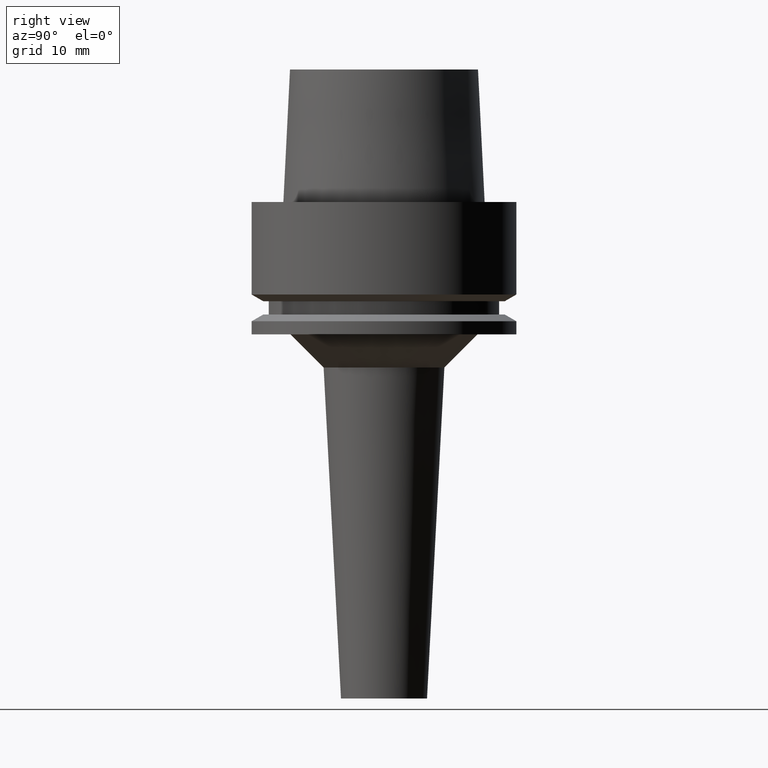
[diagram: clean part render]
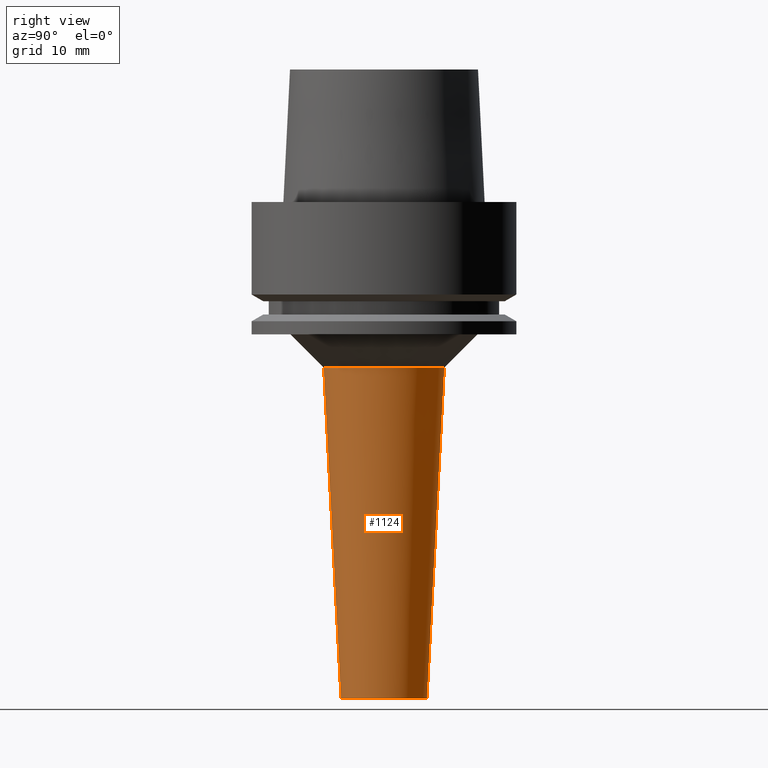
[diagram: same view with one face highlighted and labeled with its STEP entity id]
A machine part, right view. The second image highlights one B-rep face of the part: STEP entity #1124.
In plain terms, the highlighted conical surface has half-angle 3 deg.
Its self-contained STEP definition (entity closure, byte-faithful):
#316=DIRECTION('',(0.E0,-5.233595624293E-2,-9.986295347546E-1));
#317=VECTOR('',#316,5.006861729990E1);
#318=CARTESIAN_POINT('',(0.E0,9.120388964152E0,-2.5E1));
#319=LINE('',#318,#317);
#323=CARTESIAN_POINT('',(0.E0,0.E0,-2.5E1));
#324=DIRECTION('',(0.E0,0.E0,1.E0));
#325=DIRECTION('',(0.E0,-1.E0,0.E0));
#326=AXIS2_PLACEMENT_3D('',#323,#324,#325);
#331=DIRECTION('',(0.E0,5.233595624293E-2,-9.986295347546E-1));
#332=VECTOR('',#331,5.006861729990E1);
#333=CARTESIAN_POINT('',(0.E0,-9.120388964152E0,-2.5E1));
#334=LINE('',#333,#332);
#338=CARTESIAN_POINT('',(0.E0,0.E0,-7.5E1));
#339=DIRECTION('',(0.E0,0.E0,1.E0));
#340=DIRECTION('',(0.E0,-1.E0,0.E0));
#341=AXIS2_PLACEMENT_3D('',#338,#339,#340);
#768=CARTESIAN_POINT('',(0.E0,9.120388964152E0,-2.5E1));
#769=VERTEX_POINT('',#768);
#770=CARTESIAN_POINT('',(0.E0,-9.120388964152E0,-2.5E1));
#771=VERTEX_POINT('',#770);
#772=CARTESIAN_POINT('',(0.E0,6.5E0,-7.5E1));
#773=VERTEX_POINT('',#772);
#774=CARTESIAN_POINT('',(0.E0,-6.5E0,-7.5E1));
#775=VERTEX_POINT('',#774);
#1110=CARTESIAN_POINT('',(0.E0,0.E0,-5.E1));
#1111=DIRECTION('',(0.E0,0.E0,1.E0));
#1112=DIRECTION('',(0.E0,1.E0,0.E0));
#1113=AXIS2_PLACEMENT_3D('',#1110,#1111,#1112);
#1114=CONICAL_SURFACE('',#1113,7.810194482076E0,3.E0);
#1116=ORIENTED_EDGE('',*,*,#1115,.T.);
#1118=ORIENTED_EDGE('',*,*,#1117,.F.);
#1120=ORIENTED_EDGE('',*,*,#1119,.F.);
#1121=ORIENTED_EDGE('',*,*,#1103,.T.);
#1122=EDGE_LOOP('',(#1116,#1118,#1120,#1121));
#1123=FACE_OUTER_BOUND('',#1122,.F.);
#327=CIRCLE('',#326,9.120388964152E0);
#342=CIRCLE('',#341,6.5E0);
#1103=EDGE_CURVE('',#771,#769,#327,.T.);
#1115=EDGE_CURVE('',#769,#773,#319,.T.);
#1117=EDGE_CURVE('',#775,#773,#342,.T.);
#1119=EDGE_CURVE('',#771,#775,#334,.T.);
#1124=ADVANCED_FACE('',(#1123),#1114,.T.);